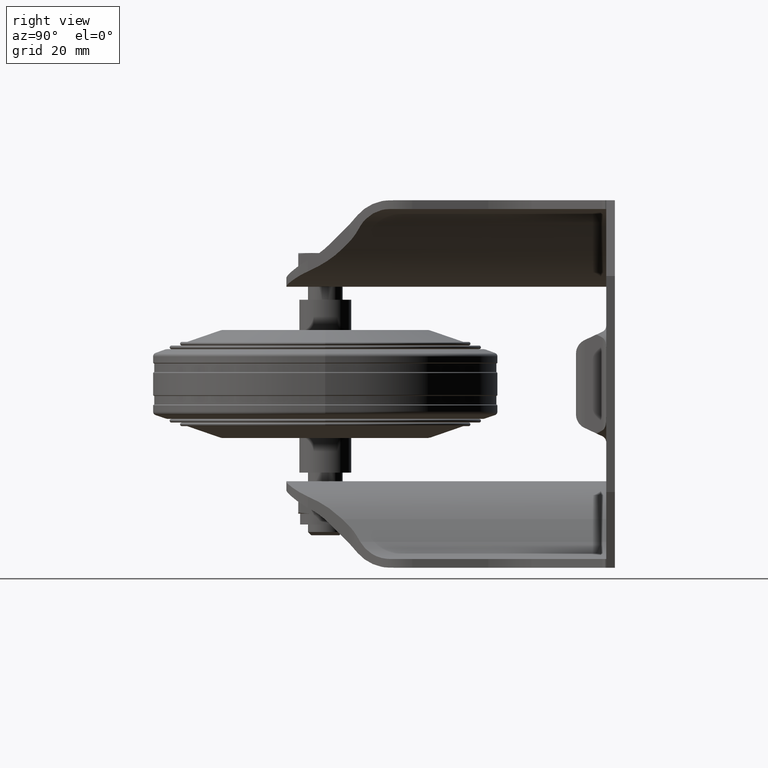
[diagram: clean part render]
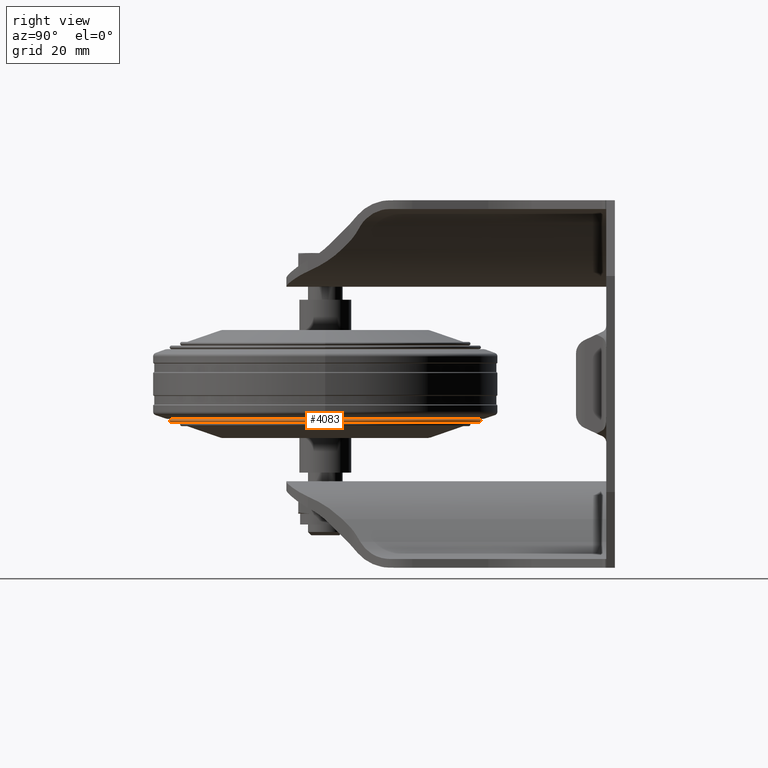
[diagram: same view with one face highlighted and labeled with its STEP entity id]
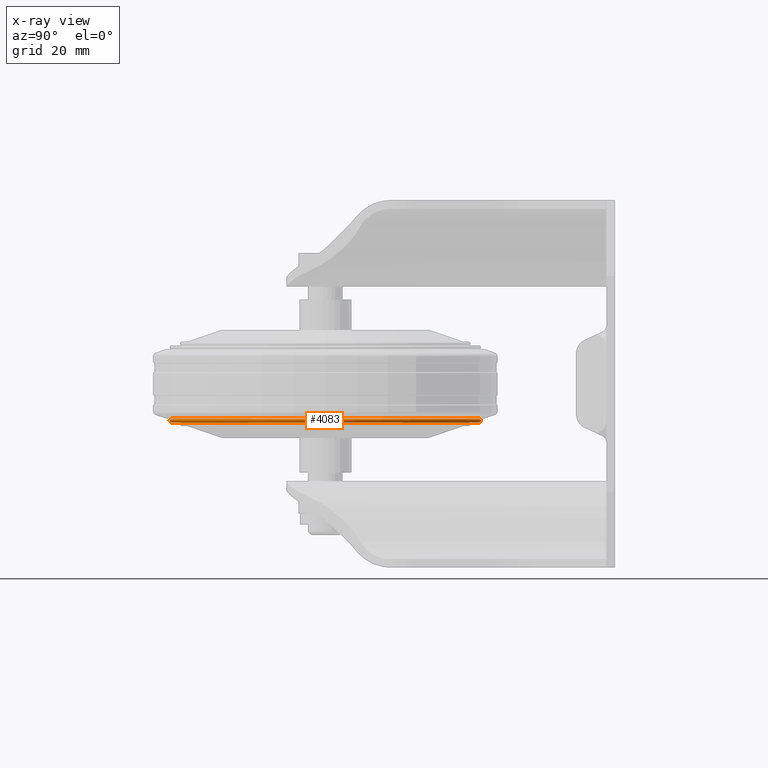
[diagram: x-ray of the same camera — body ghosted, the highlighted face saturated]
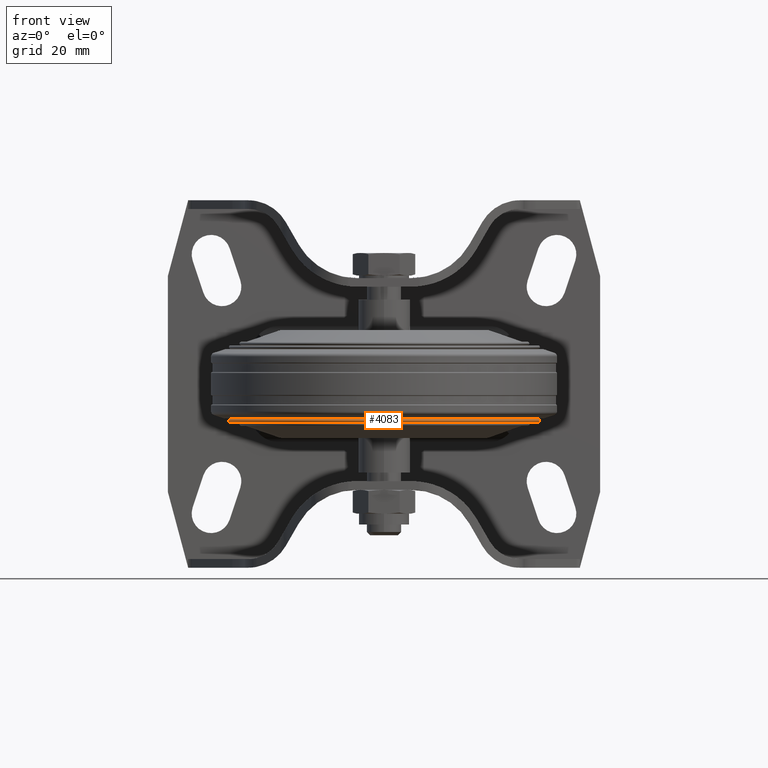
[diagram: same view with one face highlighted and labeled with its STEP entity id]
A machine part, right view. The second image highlights one B-rep face of the part: STEP entity #4083.
The next image is the same camera in x-ray: the body ghosted, the highlighted face saturated — about 0% of this face is hidden behind the body in this view.
A second angle (front view) of the same face is appended — the face is thin or edge-on in the first view.
In plain terms, the highlighted toroidal blend (fillet) surface has major radius 35.6303 mm and minor (blend) radius 0.4167 mm.
Its self-contained STEP definition (entity closure, byte-faithful):
#40=TOROIDAL_SURFACE('',#4649,35.6302635970948,0.416666666666666);
#1137=FACE_OUTER_BOUND('',#1409,.T.);
#1409=EDGE_LOOP('',(#3744,#3745,#3746,#3747));
#1610=CIRCLE('',#4648,35.6302635970948);
#1611=CIRCLE('',#4650,0.416666666666666);
#1612=CIRCLE('',#4651,35.6302635970948);
#2038=VERTEX_POINT('',#7405);
#2039=VERTEX_POINT('',#7408);
#2609=EDGE_CURVE('',#2038,#2038,#1610,.T.);
#2610=EDGE_CURVE('',#2038,#2039,#1611,.T.);
#2611=EDGE_CURVE('',#2039,#2039,#1612,.T.);
#3744=ORIENTED_EDGE('',*,*,#2609,.F.);
#3745=ORIENTED_EDGE('',*,*,#2610,.T.);
#3746=ORIENTED_EDGE('',*,*,#2611,.T.);
#3747=ORIENTED_EDGE('',*,*,#2610,.F.);
#4083=ADVANCED_FACE('',(#1137),#40,.T.);
#4648=AXIS2_PLACEMENT_3D('',#7406,#5833,#5834);
#4649=AXIS2_PLACEMENT_3D('',#7407,#5835,#5836);
#4650=AXIS2_PLACEMENT_3D('',#7409,#5837,#5838);
#4651=AXIS2_PLACEMENT_3D('',#7410,#5839,#5840);
#5833=DIRECTION('center_axis',(6.12323399573677E-17,0.,-1.));
#5834=DIRECTION('ref_axis',(-1.,0.,-6.12323399573677E-17));
#5835=DIRECTION('center_axis',(6.12323399573677E-17,0.,-1.));
#5836=DIRECTION('ref_axis',(-1.,0.,-4.92790045200062E-17));
#5837=DIRECTION('center_axis',(-1.22464679914735E-16,-1.,-7.49879891330929E-33));
#5838=DIRECTION('ref_axis',(1.,-1.22464679914735E-16,6.15987556500078E-17));
#5839=DIRECTION('center_axis',(6.12323399573677E-17,0.,-1.));
#5840=DIRECTION('ref_axis',(-1.,0.,-6.12323399573677E-17));
#7405=CARTESIAN_POINT('',(35.6302635970948,-4.36344882669586E-15,-8.91204576034935));
#7406=CARTESIAN_POINT('Origin',(5.45705415713328E-16,0.,-8.91204576034935));
#7407=CARTESIAN_POINT('Origin',(0.,0.,-8.49537909368268));
#7408=CARTESIAN_POINT('',(35.6302635970948,-4.36344882669586E-15,-8.07871242701601));
#7409=CARTESIAN_POINT('Origin',(35.6302635970948,-4.36344882669586E-15,
-8.49537909368268));
#7410=CARTESIAN_POINT('Origin',(4.94678465748855E-16,0.,-8.07871242701601));